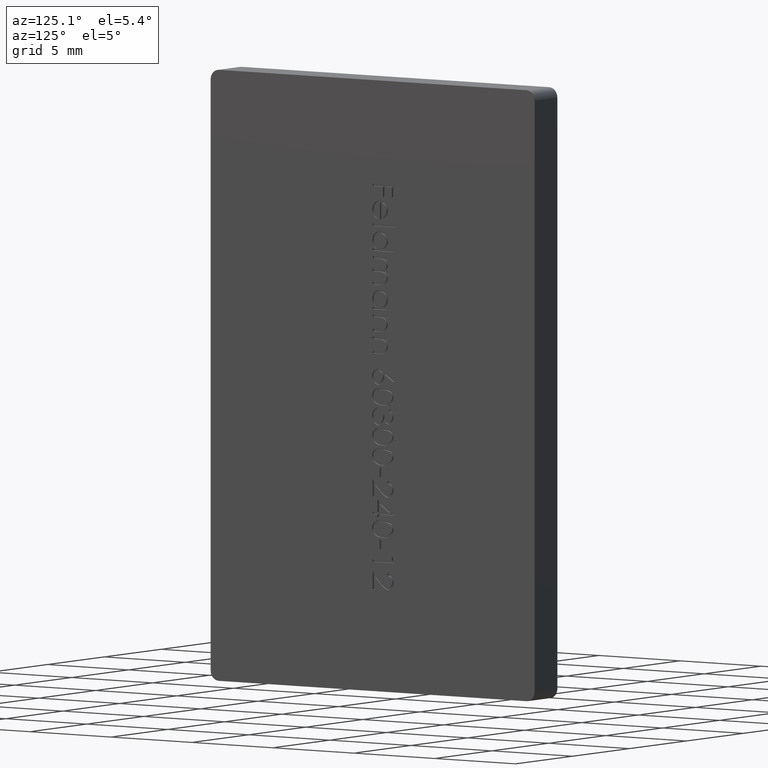
[diagram: clean part render]
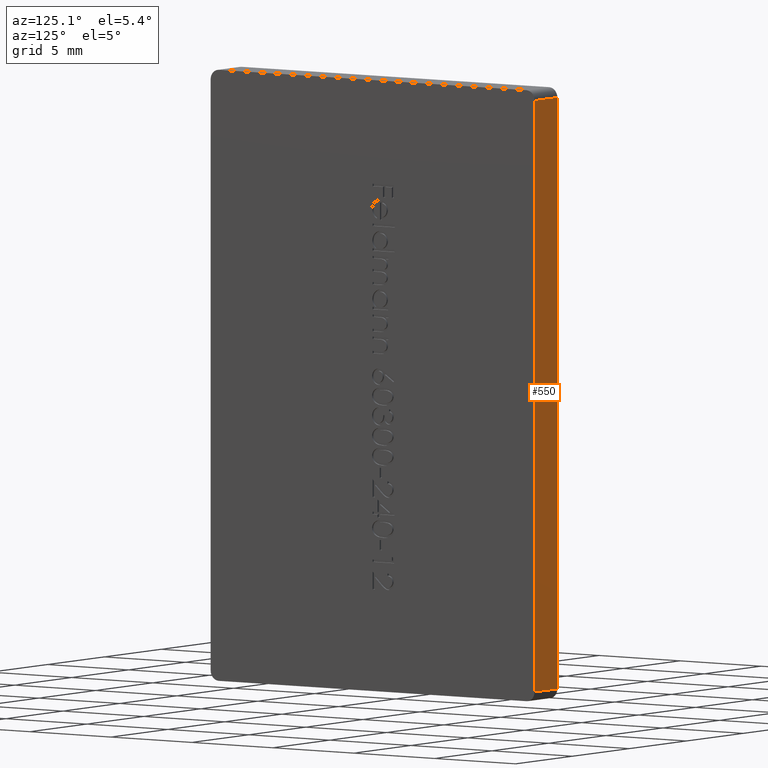
[diagram: same view with one face highlighted and labeled with its STEP entity id]
A machine part, auxiliary view. The second image highlights one B-rep face of the part: STEP entity #550.
In plain terms, the highlighted planar face has unit normal (0, -1, 0).
Its self-contained STEP definition (entity closure, byte-faithful):
#77 = LINE ( 'NONE', #7430, #609 ) ;
#121 = EDGE_CURVE ( 'NONE', #8858, #3459, #12372, .T. ) ;
#310 = AXIS2_PLACEMENT_3D ( 'NONE', #1531, #2610, #10699 ) ;
#546 = VERTEX_POINT ( 'NONE', #7215 ) ;
#550 = ADVANCED_FACE ( 'NONE', ( #14867 ), #9534, .F. ) ;
#609 = VECTOR ( 'NONE', #1658, 1000.000000000000000 ) ;
#761 = CARTESIAN_POINT ( 'NONE',  ( 2.000000000000000000, 20.00000000000000000, -0.5000000000000035527 ) ) ;
#1129 = ORIENTED_EDGE ( 'NONE', *, *, #10474, .F. ) ;
#1414 = VECTOR ( 'NONE', #4668, 1000.000000000000000 ) ;
#1477 = CARTESIAN_POINT ( 'NONE',  ( 2.000000000000000000, 20.00000000000000000, -0.5000000000000035527 ) ) ;
#1531 = CARTESIAN_POINT ( 'NONE',  ( 2.000000000000000000, 20.00000000000000000, -0.5000000000000035527 ) ) ;
#1658 = DIRECTION ( 'NONE',  ( -1.000000000000000000, -0.000000000000000000, -0.000000000000000000 ) ) ;
#2440 = ORIENTED_EDGE ( 'NONE', *, *, #121, .T. ) ;
#2610 = DIRECTION ( 'NONE',  ( 0.000000000000000000, -1.000000000000000000, 0.000000000000000000 ) ) ;
#3459 = VERTEX_POINT ( 'NONE', #3669 ) ;
#3503 = CARTESIAN_POINT ( 'NONE',  ( 2.000000000000000000, 20.00000000000000000, -30.49999999999999645 ) ) ;
#3669 = CARTESIAN_POINT ( 'NONE',  ( 0.000000000000000000, 20.00000000000000000, -0.5000000000000035527 ) ) ;
#4449 = EDGE_CURVE ( 'NONE', #546, #8858, #6490, .T. ) ;
#4668 = DIRECTION ( 'NONE',  ( -1.000000000000000000, -0.000000000000000000, -0.000000000000000000 ) ) ;
#5100 = CARTESIAN_POINT ( 'NONE',  ( 0.000000000000000000, 20.00000000000000000, -30.49999999999999645 ) ) ;
#5999 = EDGE_LOOP ( 'NONE', ( #2440, #1129, #13047, #13839 ) ) ;
#6490 = LINE ( 'NONE', #3503, #1414 ) ;
#7215 = CARTESIAN_POINT ( 'NONE',  ( 2.000000000000000000, 20.00000000000000000, -30.49999999999999645 ) ) ;
#7430 = CARTESIAN_POINT ( 'NONE',  ( 2.000000000000000000, 20.00000000000000000, -0.5000000000000035527 ) ) ;
#7475 = DIRECTION ( 'NONE',  ( -0.000000000000000000, -0.000000000000000000, 1.000000000000000000 ) ) ;
#7543 = VERTEX_POINT ( 'NONE', #761 ) ;
#8858 = VERTEX_POINT ( 'NONE', #5100 ) ;
#9534 = PLANE ( 'NONE',  #310 ) ;
#10474 = EDGE_CURVE ( 'NONE', #7543, #3459, #77, .T. ) ;
#10699 = DIRECTION ( 'NONE',  ( 0.000000000000000000, -0.000000000000000000, -1.000000000000000000 ) ) ;
#11602 = EDGE_CURVE ( 'NONE', #546, #7543, #12332, .T. ) ;
#11819 = CARTESIAN_POINT ( 'NONE',  ( 0.000000000000000000, 20.00000000000000000, -0.5000000000000035527 ) ) ;
#12332 = LINE ( 'NONE', #1477, #14500 ) ;
#12372 = LINE ( 'NONE', #11819, #13637 ) ;
#13047 = ORIENTED_EDGE ( 'NONE', *, *, #11602, .F. ) ;
#13457 = DIRECTION ( 'NONE',  ( -0.000000000000000000, -0.000000000000000000, 1.000000000000000000 ) ) ;
#13637 = VECTOR ( 'NONE', #7475, 1000.000000000000000 ) ;
#13839 = ORIENTED_EDGE ( 'NONE', *, *, #4449, .T. ) ;
#14500 = VECTOR ( 'NONE', #13457, 1000.000000000000000 ) ;
#14867 = FACE_OUTER_BOUND ( 'NONE', #5999, .T. ) ;